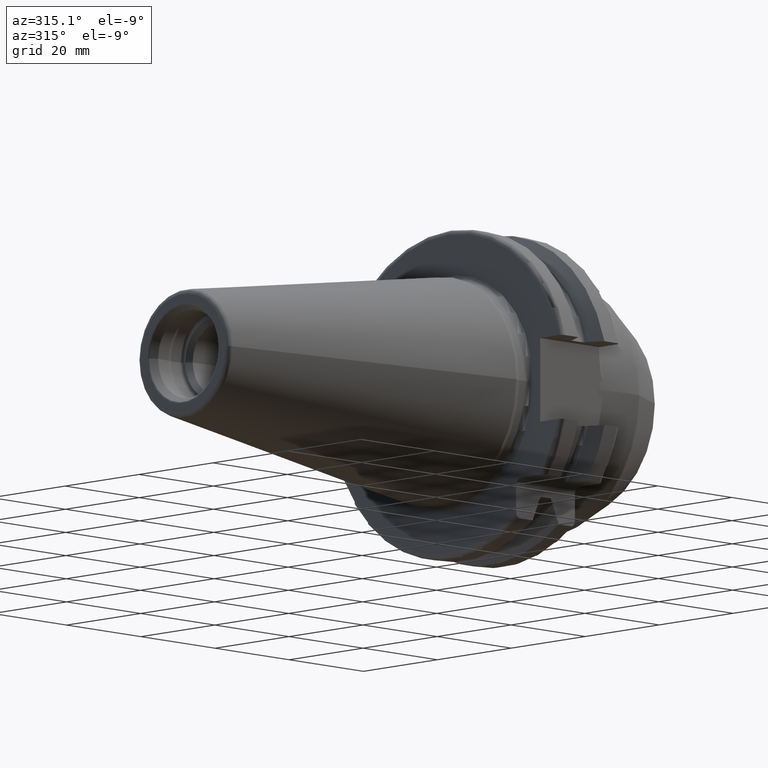
[diagram: clean part render]
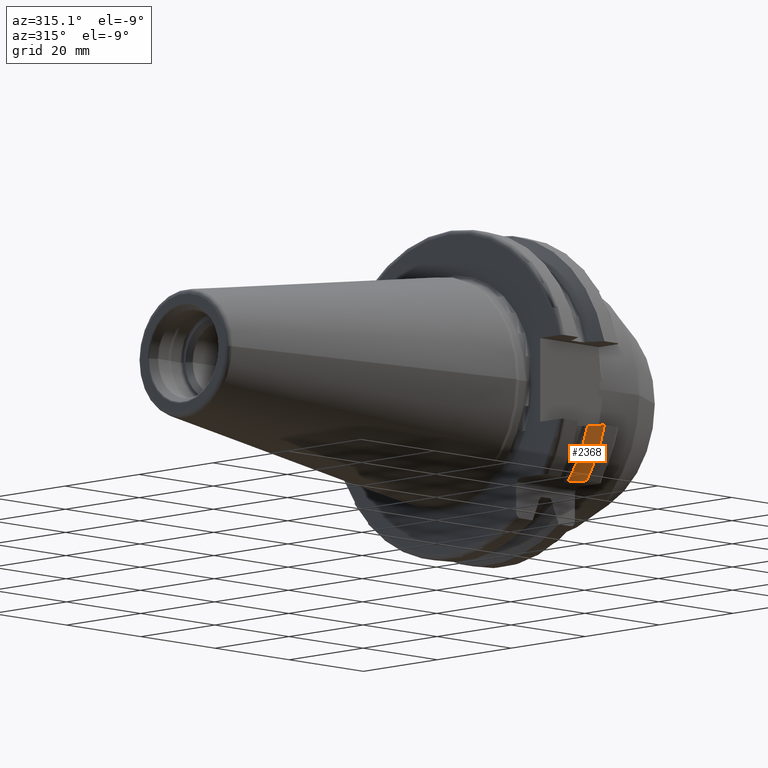
[diagram: same view with one face highlighted and labeled with its STEP entity id]
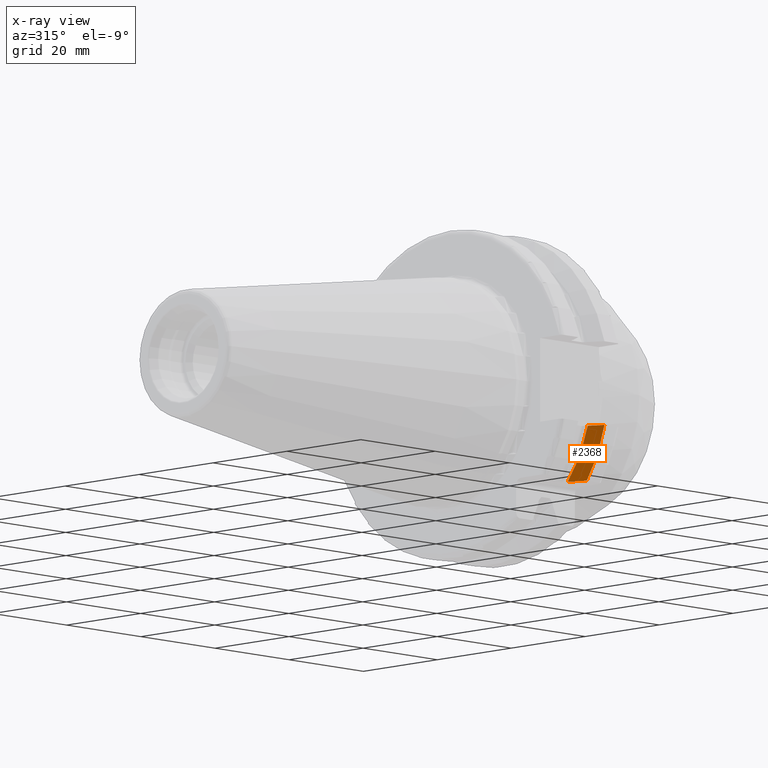
[diagram: x-ray of the same camera — body ghosted, the highlighted face saturated]
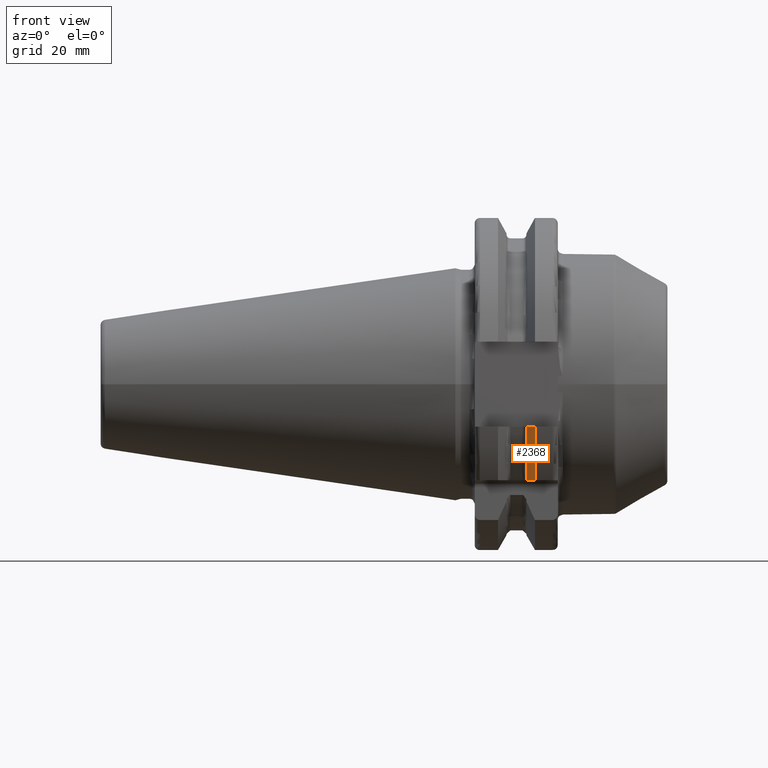
[diagram: same view with one face highlighted and labeled with its STEP entity id]
A machine part, auxiliary view. The second image highlights one B-rep face of the part: STEP entity #2368.
The next image is the same camera in x-ray: the body ghosted, the highlighted face saturated — about 0% of this face is hidden behind the body in this view.
A second angle (front view) of the same face is appended — the face is thin or edge-on in the first view.
In plain terms, the highlighted conical surface has half-angle 60 deg.
Its self-contained STEP definition (entity closure, byte-faithful):
#423=CARTESIAN_POINT('',(1.470405352042E1,0.E0,0.E0));
#424=DIRECTION('',(1.E0,0.E0,0.E0));
#425=DIRECTION('',(0.E0,-9.669363825036E-1,-2.550177095632E-1));
#426=AXIS2_PLACEMENT_3D('',#423,#424,#425);
#570=CARTESIAN_POINT('',(1.470405352042E1,-3.071231684927E1,-8.1E0));
#571=CARTESIAN_POINT('',(1.451824513517E1,-3.037948258059E1,-8.1E0));
#572=CARTESIAN_POINT('',(1.415074718503E1,-2.972048825911E1,-8.1E0));
#573=CARTESIAN_POINT('',(1.361195207986E1,-2.875212438619E1,-8.1E0));
#574=CARTESIAN_POINT('',(1.326094199325E1,-2.811971443922E1,-8.1E0));
#575=CARTESIAN_POINT('',(1.30875E1,-2.780681820245E1,-8.1E0));
#577=CARTESIAN_POINT('',(1.470405352042E1,-2.592554543785E1,-1.835E1));
#578=CARTESIAN_POINT('',(1.450926568778E1,-2.551220373088E1,-1.835E1));
#579=CARTESIAN_POINT('',(1.412985869107E1,-2.470049176917E1,-1.835E1));
#580=CARTESIAN_POINT('',(1.359156228628E1,-2.352887013532E1,-1.835E1));
#581=CARTESIAN_POINT('',(1.325223804211E1,-2.277653815910E1,-1.835E1));
#582=CARTESIAN_POINT('',(1.30875E1,-2.240773613162E1,-1.835E1));
#584=CARTESIAN_POINT('',(1.30875E1,0.E0,0.E0));
#585=DIRECTION('',(-1.E0,0.E0,0.E0));
#586=DIRECTION('',(0.E0,-7.736797457936E-1,-6.335768705917E-1));
#587=AXIS2_PLACEMENT_3D('',#584,#585,#586);
#1567=CARTESIAN_POINT('',(1.30875E1,-2.780681820245E1,-8.1E0));
#1569=VERTEX_POINT('',#1567);
#1574=CARTESIAN_POINT('',(1.30875E1,-2.240773613162E1,-1.835E1));
#1576=VERTEX_POINT('',#1574);
#1592=VERTEX_POINT('',#570);
#1646=CARTESIAN_POINT('',(1.470405352042E1,-2.592554543785E1,-1.835E1));
#1647=VERTEX_POINT('',#1646);
#2355=CARTESIAN_POINT('',(1.389577676021E1,0.E0,0.E0));
#2356=DIRECTION('',(1.E0,0.E0,0.E0));
#2357=DIRECTION('',(0.E0,-1.E0,0.E0));
#2358=AXIS2_PLACEMENT_3D('',#2355,#2356,#2357);
#2359=CONICAL_SURFACE('',#2358,3.036252358474E1,6.E1);
#2361=ORIENTED_EDGE('',*,*,#2360,.F.);
#2362=ORIENTED_EDGE('',*,*,#2205,.T.);
#2363=ORIENTED_EDGE('',*,*,#2293,.T.);
#2365=ORIENTED_EDGE('',*,*,#2364,.T.);
#2366=EDGE_LOOP('',(#2361,#2362,#2363,#2365));
#2367=FACE_OUTER_BOUND('',#2366,.F.);
#2368=ADVANCED_FACE('',(#2367),#2359,.T.);
#427=CIRCLE('',#426,3.17625E1);
#576=B_SPLINE_CURVE_WITH_KNOTS('',3,(#570,#571,#572,#573,#574,#575),
.UNSPECIFIED.,.F.,.F.,(4,1,1,4),(0.E0,3.333333333333E-1,6.666666666667E-1,1.E0),
.UNSPECIFIED.);
#583=B_SPLINE_CURVE_WITH_KNOTS('',3,(#577,#578,#579,#580,#581,#582),
.UNSPECIFIED.,.F.,.F.,(4,1,1,4),(0.E0,3.333333333333E-1,6.666666666667E-1,1.E0),
.UNSPECIFIED.);
#588=CIRCLE('',#587,2.896254716948E1);
#2205=EDGE_CURVE('',#1592,#1647,#427,.T.);
#2293=EDGE_CURVE('',#1647,#1576,#583,.T.);
#2360=EDGE_CURVE('',#1592,#1569,#576,.T.);
#2364=EDGE_CURVE('',#1576,#1569,#588,.T.);